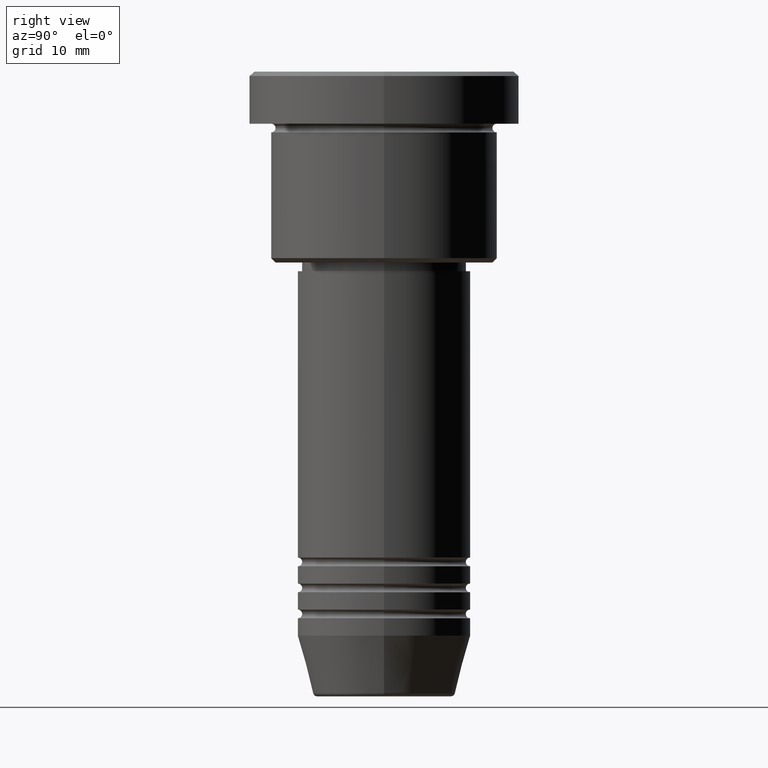
[diagram: clean part render]
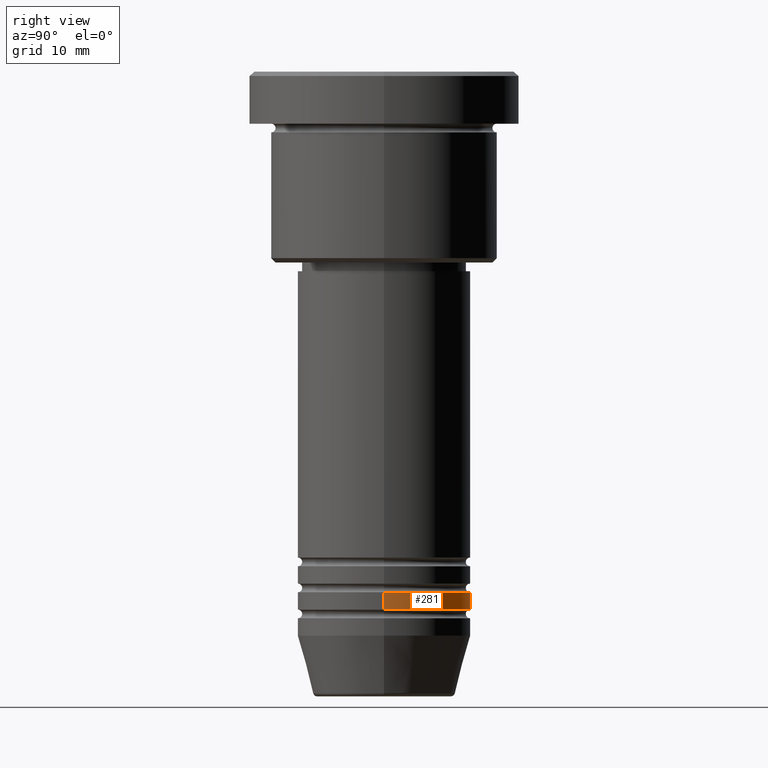
[diagram: same view with one face highlighted and labeled with its STEP entity id]
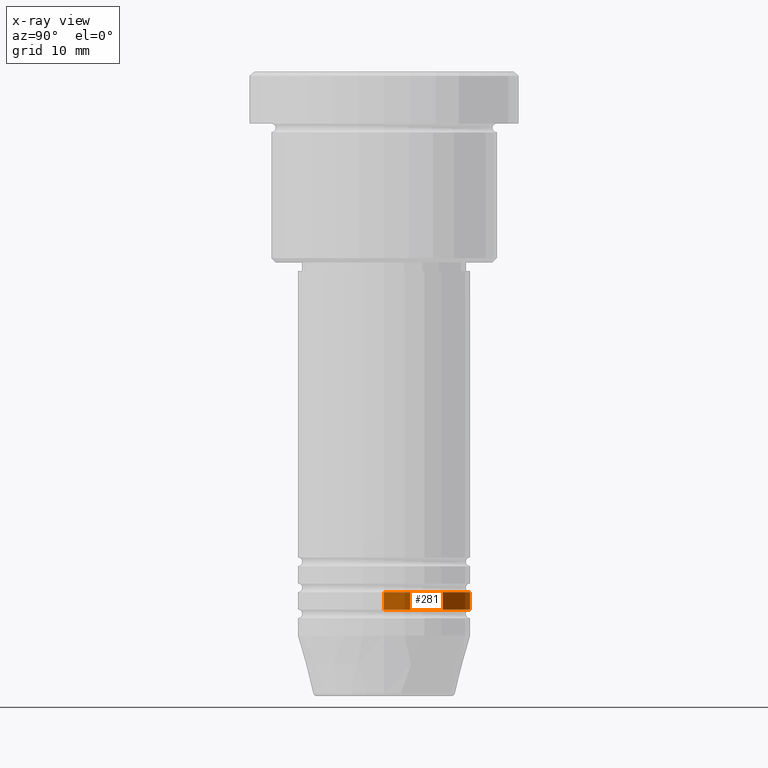
[diagram: x-ray of the same camera — body ghosted, the highlighted face saturated]
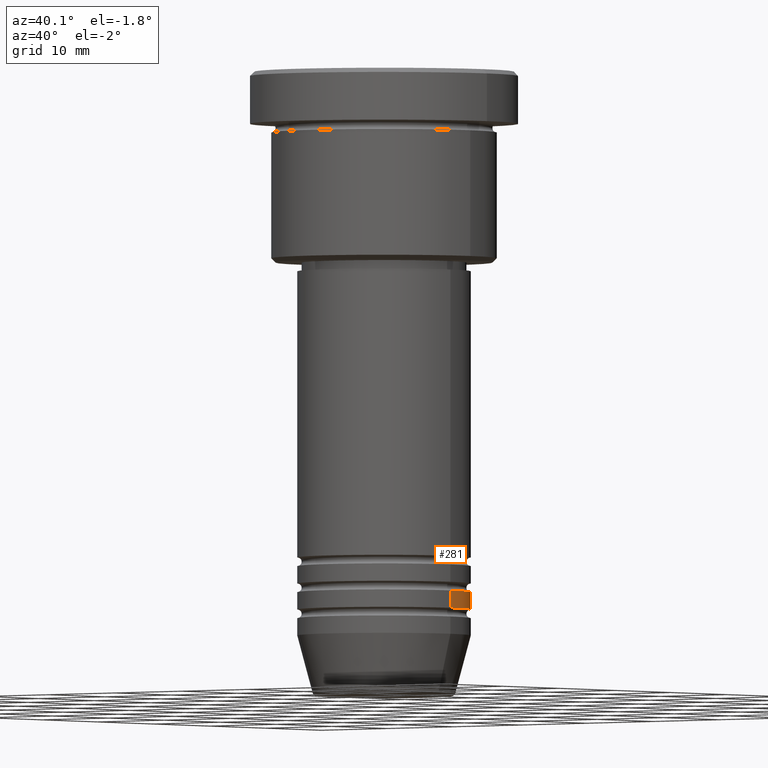
[diagram: same view with one face highlighted and labeled with its STEP entity id]
A machine part, right view. The second image highlights one B-rep face of the part: STEP entity #281.
The next image is the same camera in x-ray: the body ghosted, the highlighted face saturated — about 0% of this face is hidden behind the body in this view.
A second angle (auxiliary view) of the same face is appended — the face is thin or edge-on in the first view.
In plain terms, the highlighted cylindrical surface (partial cylindrical patch) has radius 10 mm, axis along (-0, -0, 1).
Its self-contained STEP definition (entity closure, byte-faithful):
#80 = LINE ( 'NONE', #321, #189 ) ;
#116 = DIRECTION ( 'NONE',  ( 1.000000000000000000, 0.000000000000000000, 0.000000000000000000 ) ) ;
#189 = VECTOR ( 'NONE', #687, 1000.000000000000000 ) ;
#196 = CARTESIAN_POINT ( 'NONE',  ( 10.00000000000000000, 0.000000000000000000, -61.99999999999998579 ) ) ;
#242 = DIRECTION ( 'NONE',  ( 1.000000000000000000, 0.000000000000000000, 0.000000000000000000 ) ) ;
#256 = VERTEX_POINT ( 'NONE', #196 ) ;
#281 = ADVANCED_FACE ( 'NONE', ( #1021 ), #573, .T. ) ;
#285 = CIRCLE ( 'NONE', #411, 10.00000000000000000 ) ;
#292 = CARTESIAN_POINT ( 'NONE',  ( 0.000000000000000000, 0.000000000000000000, 0.000000000000000000 ) ) ;
#321 = CARTESIAN_POINT ( 'NONE',  ( -10.00000000000000000, 1.224646799147353256E-15, 0.000000000000000000 ) ) ;
#354 = DIRECTION ( 'NONE',  ( -0.000000000000000000, -0.000000000000000000, 1.000000000000000000 ) ) ;
#367 = LINE ( 'NONE', #803, #464 ) ;
#380 = CARTESIAN_POINT ( 'NONE',  ( -10.00000000000000000, 1.224646799147353256E-15, -59.99999999999998579 ) ) ;
#402 = EDGE_CURVE ( 'NONE', #944, #1089, #285, .T. ) ;
#411 = AXIS2_PLACEMENT_3D ( 'NONE', #509, #764, #242 ) ;
#457 = VERTEX_POINT ( 'NONE', #1135 ) ;
#462 = ORIENTED_EDGE ( 'NONE', *, *, #580, .F. ) ;
#464 = VECTOR ( 'NONE', #354, 1000.000000000000000 ) ;
#466 = AXIS2_PLACEMENT_3D ( 'NONE', #949, #874, #1069 ) ;
#509 = CARTESIAN_POINT ( 'NONE',  ( 0.000000000000000000, 0.000000000000000000, -59.99999999999998579 ) ) ;
#520 = ORIENTED_EDGE ( 'NONE', *, *, #402, .F. ) ;
#573 = CYLINDRICAL_SURFACE ( 'NONE', #1059, 10.00000000000000000 ) ;
#580 = EDGE_CURVE ( 'NONE', #256, #944, #367, .T. ) ;
#604 = CIRCLE ( 'NONE', #466, 10.00000000000000000 ) ;
#676 = ORIENTED_EDGE ( 'NONE', *, *, #1162, .T. ) ;
#687 = DIRECTION ( 'NONE',  ( -0.000000000000000000, -0.000000000000000000, 1.000000000000000000 ) ) ;
#764 = DIRECTION ( 'NONE',  ( -0.000000000000000000, -0.000000000000000000, 1.000000000000000000 ) ) ;
#783 = EDGE_CURVE ( 'NONE', #256, #457, #604, .T. ) ;
#803 = CARTESIAN_POINT ( 'NONE',  ( 10.00000000000000000, 0.000000000000000000, 0.000000000000000000 ) ) ;
#832 = EDGE_LOOP ( 'NONE', ( #1024, #676, #520, #462 ) ) ;
#874 = DIRECTION ( 'NONE',  ( -0.000000000000000000, -0.000000000000000000, 1.000000000000000000 ) ) ;
#924 = DIRECTION ( 'NONE',  ( -0.000000000000000000, -0.000000000000000000, 1.000000000000000000 ) ) ;
#944 = VERTEX_POINT ( 'NONE', #977 ) ;
#949 = CARTESIAN_POINT ( 'NONE',  ( 0.000000000000000000, 0.000000000000000000, -61.99999999999998579 ) ) ;
#977 = CARTESIAN_POINT ( 'NONE',  ( 10.00000000000000000, 0.000000000000000000, -59.99999999999998579 ) ) ;
#1021 = FACE_OUTER_BOUND ( 'NONE', #832, .T. ) ;
#1024 = ORIENTED_EDGE ( 'NONE', *, *, #783, .T. ) ;
#1059 = AXIS2_PLACEMENT_3D ( 'NONE', #292, #924, #116 ) ;
#1069 = DIRECTION ( 'NONE',  ( 1.000000000000000000, 0.000000000000000000, 0.000000000000000000 ) ) ;
#1089 = VERTEX_POINT ( 'NONE', #380 ) ;
#1135 = CARTESIAN_POINT ( 'NONE',  ( -10.00000000000000000, 1.224646799147353256E-15, -61.99999999999998579 ) ) ;
#1162 = EDGE_CURVE ( 'NONE', #457, #1089, #80, .T. ) ;